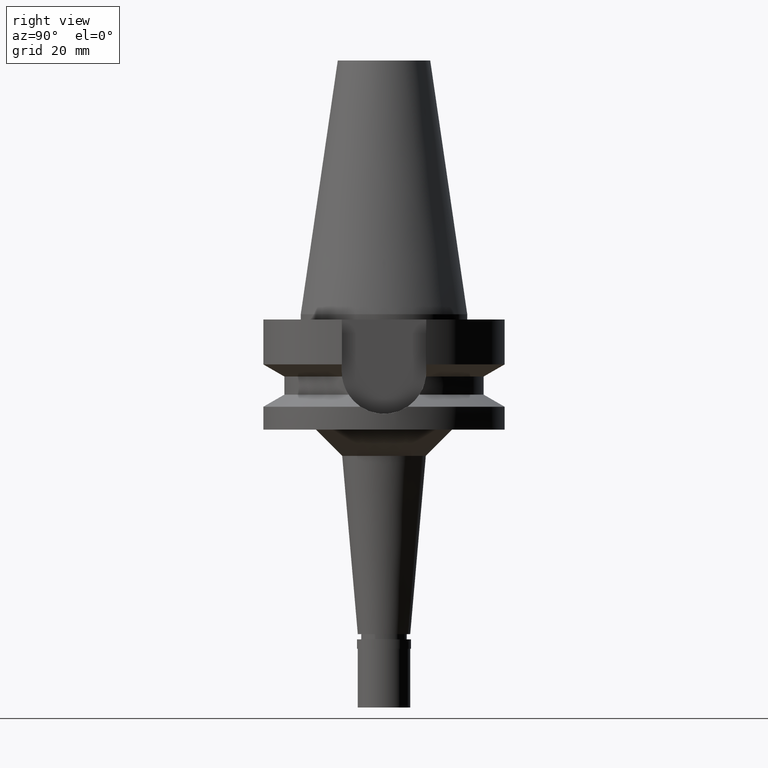
[diagram: clean part render]
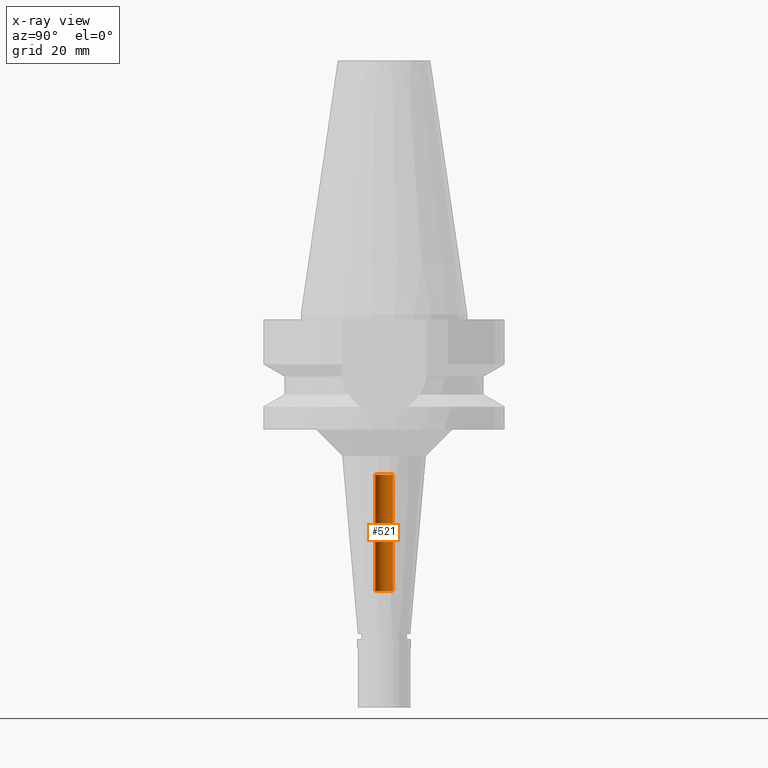
[diagram: x-ray — body ghosted, one internal face saturated and labeled with its STEP entity id]
A machine part, right view, then the same camera in x-ray: the body is ghosted and one INTERNAL B-rep face — a face not visible from any outside direction — is saturated and labeled: STEP entity #521.
In plain terms, the highlighted cylindrical surface (edge-blend (fillet) strip) has radius 1.7 mm, axis along (0, 0, -1).
Its self-contained STEP definition (entity closure, byte-faithful):
#11 = EDGE_LOOP ( 'NONE', ( #1050, #2239, #1849, #2389 ) ) ;
#218 = VERTEX_POINT ( 'NONE', #705 ) ;
#281 = EDGE_CURVE ( 'NONE', #2007, #887, #2680, .T. ) ;
#369 = CARTESIAN_POINT ( 'NONE',  ( 0.0000000000000000000, 1.890670960863999669E-14, -30.59999999999999787 ) ) ;
#414 = VECTOR ( 'NONE', #1126, 1000.000000000000000 ) ;
#447 = AXIS2_PLACEMENT_3D ( 'NONE', #2337, #1883, #2802 ) ;
#496 = DIRECTION ( 'NONE',  ( 0.0000000000000000000, 0.0000000000000000000, -1.000000000000000000 ) ) ;
#521 = ADVANCED_FACE ( 'NONE', ( #2786 ), #1419, .F. ) ;
#662 = CARTESIAN_POINT ( 'NONE',  ( 0.0000000000000000000, 1.699999999999999956, -30.59999999999999787 ) ) ;
#705 = CARTESIAN_POINT ( 'NONE',  ( 0.0000000000000000000, -1.699999999999999956, -30.59999999999999787 ) ) ;
#887 = VERTEX_POINT ( 'NONE', #662 ) ;
#1050 = ORIENTED_EDGE ( 'NONE', *, *, #1399, .T. ) ;
#1071 = CIRCLE ( 'NONE', #1407, 1.699999999999999956 ) ;
#1126 = DIRECTION ( 'NONE',  ( 0.0000000000000000000, 0.0000000000000000000, 1.000000000000000000 ) ) ;
#1171 = VERTEX_POINT ( 'NONE', #1631 ) ;
#1280 = DIRECTION ( 'NONE',  ( 0.0000000000000000000, 0.0000000000000000000, 1.000000000000000000 ) ) ;
#1300 = LINE ( 'NONE', #2941, #414 ) ;
#1399 = EDGE_CURVE ( 'NONE', #887, #218, #1071, .T. ) ;
#1407 = AXIS2_PLACEMENT_3D ( 'NONE', #369, #1280, #2208 ) ;
#1419 = CYLINDRICAL_SURFACE ( 'NONE', #447, 1.699999999999999956 ) ;
#1491 = DIRECTION ( 'NONE',  ( 0.0000000000000000000, 0.0000000000000000000, 1.000000000000000000 ) ) ;
#1524 = CARTESIAN_POINT ( 'NONE',  ( 0.0000000000000000000, 1.699999999999999956, -52.79999999999999716 ) ) ;
#1624 = EDGE_CURVE ( 'NONE', #1171, #2007, #2078, .T. ) ;
#1631 = CARTESIAN_POINT ( 'NONE',  ( 0.0000000000000000000, -1.699999999999999956, -52.79999999999999716 ) ) ;
#1849 = ORIENTED_EDGE ( 'NONE', *, *, #1624, .T. ) ;
#1873 = CARTESIAN_POINT ( 'NONE',  ( 0.0000000000000000000, 1.890670960863999669E-14, -52.79999999999999716 ) ) ;
#1883 = DIRECTION ( 'NONE',  ( 0.0000000000000000000, 0.0000000000000000000, -1.000000000000000000 ) ) ;
#2007 = VERTEX_POINT ( 'NONE', #2043 ) ;
#2043 = CARTESIAN_POINT ( 'NONE',  ( 0.0000000000000000000, 1.699999999999999956, -52.79999999999999716 ) ) ;
#2078 = CIRCLE ( 'NONE', #2417, 1.699999999999999956 ) ;
#2088 = DIRECTION ( 'NONE',  ( 0.0000000000000000000, -1.000000000000000000, 0.0000000000000000000 ) ) ;
#2208 = DIRECTION ( 'NONE',  ( 0.0000000000000000000, 1.000000000000000000, 0.0000000000000000000 ) ) ;
#2239 = ORIENTED_EDGE ( 'NONE', *, *, #2453, .F. ) ;
#2337 = CARTESIAN_POINT ( 'NONE',  ( 0.0000000000000000000, 1.890670960863999669E-14, 54.38500000000000512 ) ) ;
#2389 = ORIENTED_EDGE ( 'NONE', *, *, #281, .T. ) ;
#2417 = AXIS2_PLACEMENT_3D ( 'NONE', #1873, #496, #2088 ) ;
#2453 = EDGE_CURVE ( 'NONE', #1171, #218, #1300, .T. ) ;
#2651 = VECTOR ( 'NONE', #1491, 1000.000000000000000 ) ;
#2680 = LINE ( 'NONE', #1524, #2651 ) ;
#2786 = FACE_OUTER_BOUND ( 'NONE', #11, .T. ) ;
#2802 = DIRECTION ( 'NONE',  ( 0.0000000000000000000, -1.000000000000000000, 0.0000000000000000000 ) ) ;
#2941 = CARTESIAN_POINT ( 'NONE',  ( 0.0000000000000000000, -1.699999999999999956, -52.79999999999999716 ) ) ;